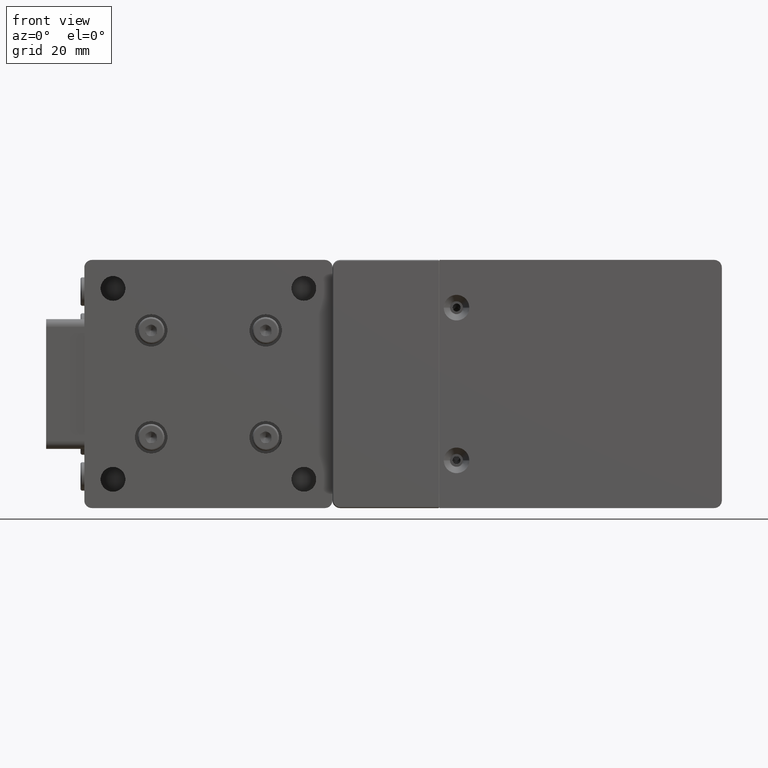
[diagram: clean part render]
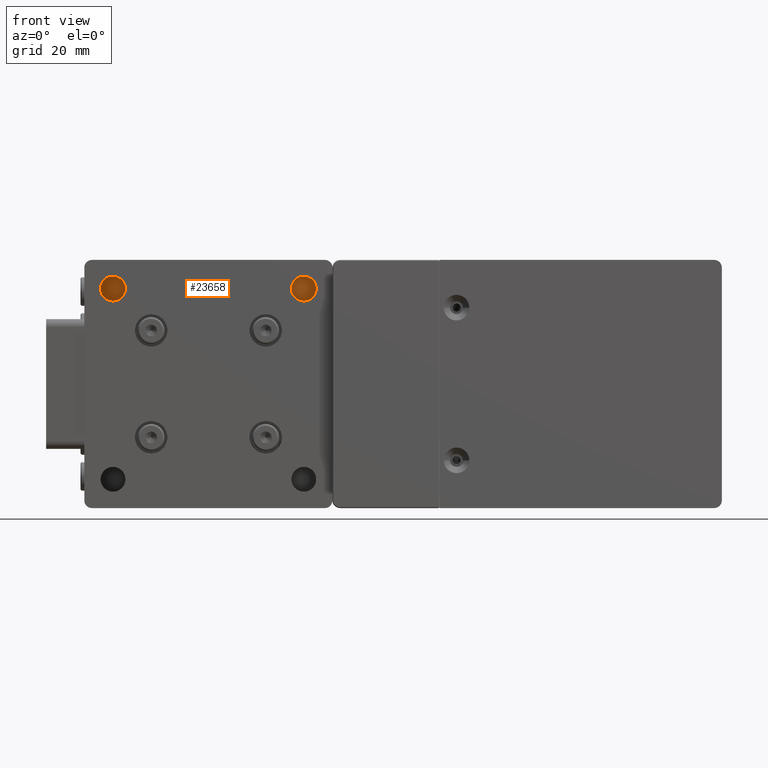
[diagram: same view with one face highlighted and labeled with its STEP entity id]
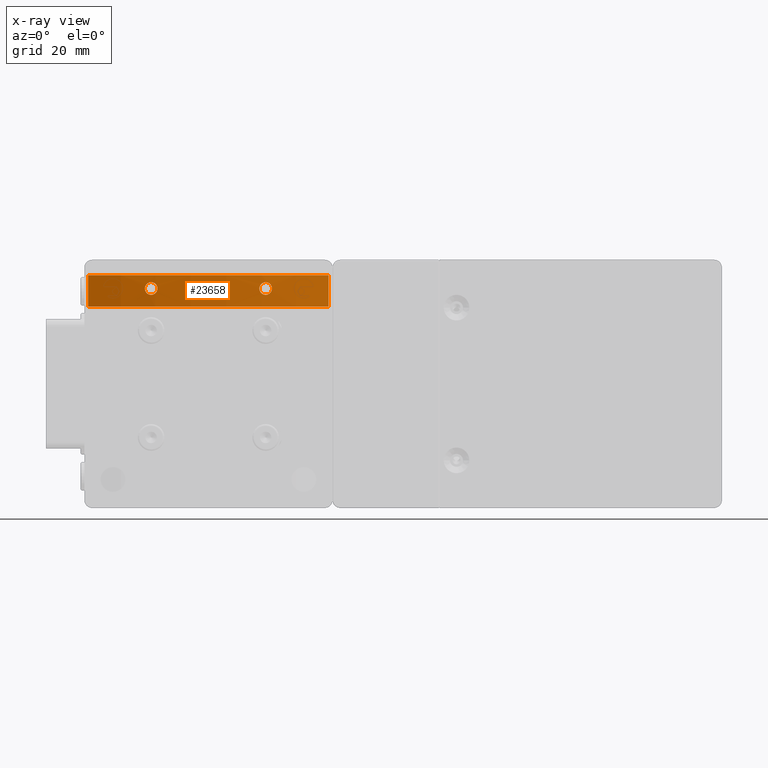
[diagram: x-ray of the same camera — body ghosted, the highlighted face saturated]
A machine part, front view. The second image highlights one B-rep face of the part: STEP entity #23658.
The next image is the same camera in x-ray: the body ghosted, the highlighted face saturated — about 0% of this face is hidden behind the body in this view.
In plain terms, the highlighted cylindrical surface (partial cylindrical patch) has radius 69 mm, axis along (0, 0, -1).
Its self-contained STEP definition (entity closure, byte-faithful):
#208 = CARTESIAN_POINT ( 'NONE',  ( -136.2671444760390216, 17.25779805089670305, 26.53107892347796692 ) ) ;
#495 = CARTESIAN_POINT ( 'NONE',  ( -136.3230241423154609, 17.24591134349849142, 23.49246358836145632 ) ) ;
#762 = CARTESIAN_POINT ( 'NONE',  ( -136.7476540198292128, 17.15716216431018637, 26.23422552766652416 ) ) ;
#937 = B_SPLINE_CURVE_WITH_KNOTS ( 'NONE', 3,
 ( #28343, #14983, #11346, #32518, #19421, #36961, #36673, #19974, #54193, #45582, #49477, #40590, #50016, #28071, #20246, #28615, #10792, #45302, #33059, #41131, #36133, #7453, #7179, #24169, #53370, #11622, #3002, #6358, #53927, #53102, #11070, #15804, #40853, #32780, #49751, #31958, #24438, #41422, #27513, #37229, #44480, #19158, #40305, #2176, #27787, #23625, #44751, #32226, #49190, #6631, #2456, #45031, #2734, #36399, #6907, #23887, #38046 ),
 .UNSPECIFIED., .F., .F.,
 ( 4, 2, 2, 2, 1, 1, 1, 2, 2, 2, 2, 1, 1, 2, 2, 2, 2, 2, 2, 2, 1, 1, 2, 2, 2, 2, 1, 1, 1, 1, 2, 2, 2, 4 ),
 ( 0.000000000000000000, 0.06249999999933407435, 0.09374999999899387426, 0.1093749999988235799, 0.1171874999987370519, 0.1210937499986931148, 0.1230468749986719512, 0.1240234374986598220, 0.1249999999986476928, 0.1874999999985022259, 0.2187499999984230670, 0.2343749999983770205, 0.2421874999983542054, 0.2460937499983498200, 0.2499999999983454346, 0.3749999999981881715, 0.4999999999980310195, 0.6249999999978738119, 0.6874999999977950971, 0.7187499999977607912, 0.7343749999977429166, 0.7421874999977290388, 0.7460937499977279286, 0.7499999999977268184, 0.8124999999977000620, 0.8437499999976932896, 0.8593749999976897369, 0.8671874999976882936, 0.8710937499976938447, 0.8730468749977028375, 0.8740234374977133847, 0.8749999999977239318, 0.9374999999988619104, 1.000000000000000000 ),
 .UNSPECIFIED. ) ;
#1036 = CARTESIAN_POINT ( 'NONE',  ( -135.9073143330418816, 17.33499617951038729, 23.35000000000000142 ) ) ;
#2176 = CARTESIAN_POINT ( 'NONE',  ( -166.4879652450436822, 17.58338118827665042, 23.57625209971656943 ) ) ;
#2456 = CARTESIAN_POINT ( 'NONE',  ( -166.2805825868216800, 17.53491289971255540, 23.47439690533544265 ) ) ;
#2563 = CARTESIAN_POINT ( 'NONE',  ( -164.3421149443990430, 17.11348866702505589, 26.00482148240324776 ) ) ;
#2734 = CARTESIAN_POINT ( 'NONE',  ( -166.2560988766641685, 17.52922092859046188, 23.46437258649104507 ) ) ;
#3002 = CARTESIAN_POINT ( 'NONE',  ( -167.2642609248367478, 17.77059325249816268, 25.41307193802908770 ) ) ;
#3022 = CARTESIAN_POINT ( 'NONE',  ( -135.0282118916066452, 17.53382673218439436, 23.47248179435045756 ) ) ;
#3121 = CARTESIAN_POINT ( 'NONE',  ( -164.4517016190830248, 17.13569483385906267, 26.13218119142318585 ) ) ;
#3361 = ORIENTED_EDGE ( 'NONE', *, *, #14215, .F. ) ;
#3392 = CARTESIAN_POINT ( 'NONE',  ( -165.6520614493394987, 17.39184551509384846, 26.64999999999999858 ) ) ;
#3671 = CARTESIAN_POINT ( 'NONE',  ( -164.2168744469715875, 17.08837574997539832, 25.82159775378046263 ) ) ;
#4133 = CARTESIAN_POINT ( 'NONE',  ( -134.4212197534290283, 17.67777941614300374, 26.09954506744314529 ) ) ;
#4393 = CARTESIAN_POINT ( 'NONE',  ( -134.5539894529269134, 17.64581223508557883, 23.76803023074601029 ) ) ;
#4666 = CARTESIAN_POINT ( 'NONE',  ( -136.6581535841622213, 17.17565264822895088, 26.30880685101286431 ) ) ;
#4940 = CARTESIAN_POINT ( 'NONE',  ( -136.1024890502454241, 17.29317437974479787, 26.58806184027736563 ) ) ;
#5209 = CARTESIAN_POINT ( 'NONE',  ( -136.6607204706821221, 17.17507861072263253, 23.68976944116282013 ) ) ;
#5481 = CARTESIAN_POINT ( 'NONE',  ( -136.0533748768193618, 17.30380578308597705, 26.60134371806330122 ) ) ;
#5761 = CARTESIAN_POINT ( 'NONE',  ( -137.2618042072623439, 17.05361926617134216, 24.57738059257509278 ) ) ;
#5810 = ORIENTED_EDGE ( 'NONE', *, *, #38083, .T. ) ;
#6358 = CARTESIAN_POINT ( 'NONE',  ( -167.3019066863101045, 17.78062275330859165, 25.20324927955860161 ) ) ;
#6631 = CARTESIAN_POINT ( 'NONE',  ( -166.2841006002981317, 17.53573093284395057, 23.47585101306745514 ) ) ;
#6650 = CARTESIAN_POINT ( 'NONE',  ( -135.1189626434997422, 17.51249719911340463, 23.43815787893170821 ) ) ;
#6745 = CARTESIAN_POINT ( 'NONE',  ( -164.8232266047364192, 17.21260357458587009, 26.42780440928181918 ) ) ;
#6907 = CARTESIAN_POINT ( 'NONE',  ( -165.9904623481330361, 17.46751512987306398, 23.38154454503272106 ) ) ;
#7009 = CARTESIAN_POINT ( 'NONE',  ( -164.4711839725119091, 17.13966879092089357, 26.15248703117523377 ) ) ;
#7179 = CARTESIAN_POINT ( 'NONE',  ( -166.8030455636016711, 17.65855245176747346, 26.18227321476728520 ) ) ;
#7195 = CARTESIAN_POINT ( 'NONE',  ( -135.6520614493391861, 17.39184551509384846, 23.34999999999999787 ) ) ;
#7198 = EDGE_LOOP ( 'NONE', ( #18204, #52701 ) ) ;
#7292 = CARTESIAN_POINT ( 'NONE',  ( -164.8233544309914009, 17.21259444788138637, 23.56916528775573738 ) ) ;
#7453 = CARTESIAN_POINT ( 'NONE',  ( -166.7946132457432213, 17.65652123940702367, 26.19042420093629531 ) ) ;
#7472 = CARTESIAN_POINT ( 'NONE',  ( -135.0455148064788773, 17.52976837978576796, 23.46551934169836784 ) ) ;
#7575 = CARTESIAN_POINT ( 'NONE',  ( -164.9342996013083109, 17.23599378208215072, 26.48617625572539680 ) ) ;
#7842 = CARTESIAN_POINT ( 'NONE',  ( -164.5295584518267447, 17.15162988606447669, 23.79060079269475025 ) ) ;
#7891 = VERTEX_POINT ( 'NONE', #19467 ) ;
#8026 = CARTESIAN_POINT ( 'NONE',  ( -134.4813358581939440, 17.66330791217172802, 26.16273587205414586 ) ) ;
#8294 = CARTESIAN_POINT ( 'NONE',  ( -134.4711099147278617, 17.66577041684524474, 26.15234829406006156 ) ) ;
#8574 = CARTESIAN_POINT ( 'NONE',  ( -134.4989868200676710, 17.65905617256691329, 23.81975761088409982 ) ) ;
#8821 = CARTESIAN_POINT ( 'NONE',  ( -136.3683059692373547, 17.23631486311974470, 23.51309030908805298 ) ) ;
#8828 = CARTESIAN_POINT ( 'NONE',  ( -134.3046921469731956, 17.70583637289161771, 25.95408733201701779 ) ) ;
#9026 = CARTESIAN_POINT ( 'NONE',  ( -165.6520614493394987, 17.39184551509384846, 26.64999999999999858 ) ) ;
#9097 = CARTESIAN_POINT ( 'NONE',  ( -136.4817623568887655, 17.21238592360695918, 26.43026579779363061 ) ) ;
#9377 = CARTESIAN_POINT ( 'NONE',  ( -136.3834671970221279, 17.23301897884172362, 26.48349052656696756 ) ) ;
#9602 = B_SPLINE_CURVE_WITH_KNOTS ( 'NONE', 3,
 ( #50124, #11186, #23728, #15911, #41792, #15093, #37066, #15363, #24556, #53209, #24280, #33168, #7292, #28179, #45691, #45411, #28725, #7842, #54302, #44864, #15644, #20090, #12017, #27892, #41245, #54027, #19808, #3671, #40689, #2563, #16187, #32892, #3121, #7009, #20351, #49853, #49034, #11733, #6745, #36788, #7575, #10903, #53763, #32623, #49577, #41532, #11450, #3392 ),
 .UNSPECIFIED., .F., .F.,
 ( 4, 2, 2, 1, 1, 2, 2, 2, 2, 1, 2, 2, 2, 2, 2, 2, 2, 1, 2, 2, 2, 2, 1, 1, 2, 2, 4 ),
 ( 0.000000000000000000, 0.06250000000002825518, 0.09375000000004238276, 0.1093750000000414252, 0.1171875000000495437, 0.1210937500000540401, 0.1250000000000585088, 0.1875000000000957567, 0.2187500000001145473, 0.2343750000001239564, 0.2421875000001286471, 0.2500000000001333378, 0.3750000000002343126, 0.5000000000003352874, 0.6250000000004362066, 0.6875000000004876100, 0.7187500000005098144, 0.7343750000005216938, 0.7421875000005224710, 0.7500000000005232481, 0.8125000000004949374, 0.8437500000004872769, 0.8593750000004833911, 0.8671875000004886092, 0.8710937500004842793, 0.8750000000004799494, 1.000000000000000000 ),
 .UNSPECIFIED. ) ;
#9646 = CARTESIAN_POINT ( 'NONE',  ( -136.2570001940165412, 17.25996307609115732, 26.53511527737849818 ) ) ;
#10792 = CARTESIAN_POINT ( 'NONE',  ( -166.6239962039541922, 17.61559533663841037, 26.33443767307752026 ) ) ;
#10903 = CARTESIAN_POINT ( 'NONE',  ( -164.9794833863145698, 17.24556841587363820, 26.50681601582882507 ) ) ;
#11065 = CARTESIAN_POINT ( 'NONE',  ( -119.1520614493393850, 23.35153268798140047, 28.50000000000000000 ) ) ;
#11070 = CARTESIAN_POINT ( 'NONE',  ( -167.1433154431358048, 17.74072283457915944, 24.28548958750046438 ) ) ;
#11090 = CARTESIAN_POINT ( 'NONE',  ( -135.1595579231535567, 17.50300666722466403, 23.42431318327391665 ) ) ;
#11186 = CARTESIAN_POINT ( 'NONE',  ( -165.5246043338255220, 17.36345855927478965, 23.35000000000000853 ) ) ;
#11339 = LINE ( 'NONE', #53361, #35325 ) ;
#11346 = CARTESIAN_POINT ( 'NONE',  ( -165.9904929759353820, 17.46752167085331564, 26.61845258880001808 ) ) ;
#11450 = CARTESIAN_POINT ( 'NONE',  ( -165.3960333312031992, 17.33482352107915503, 26.65000000000000213 ) ) ;
#11622 = CARTESIAN_POINT ( 'NONE',  ( -167.1021288693850124, 17.73055658147615077, 25.81677417448347356 ) ) ;
#11733 = CARTESIAN_POINT ( 'NONE',  ( -164.7763658142482655, 17.20279677848649413, 26.39948122451201229 ) ) ;
#11919 = CARTESIAN_POINT ( 'NONE',  ( -134.9293083268319720, 17.55686349103625687, 26.48380004553909828 ) ) ;
#12004 = ORIENTED_EDGE ( 'NONE', *, *, #40836, .F. ) ;
#12017 = CARTESIAN_POINT ( 'NONE',  ( -164.0431302957485684, 17.05378121623911625, 24.57441267906834526 ) ) ;
#12191 = CARTESIAN_POINT ( 'NONE',  ( -134.0401639804246940, 17.77051733157828295, 24.58573140635856191 ) ) ;
#12468 = CARTESIAN_POINT ( 'NONE',  ( -134.5577130720766945, 17.64490913301945341, 26.23835717445016869 ) ) ;
#12475 = FACE_OUTER_BOUND ( 'NONE', #25489, .T. ) ;
#12494 = CIRCLE ( 'NONE', #40938, 69.00000000000000000 ) ;
#12739 = CARTESIAN_POINT ( 'NONE',  ( -134.7675492650946865, 17.59485156339887268, 26.39392208088401404 ) ) ;
#13016 = CARTESIAN_POINT ( 'NONE',  ( -137.2613206622957591, 17.05371611586742731, 25.42432057609324758 ) ) ;
#13022 = CARTESIAN_POINT ( 'NONE',  ( -134.1603686656996786, 17.74083062617772555, 25.71359751916283543 ) ) ;
#13560 = CARTESIAN_POINT ( 'NONE',  ( -137.1383050378139501, 17.07822009626421433, 24.27513813504076623 ) ) ;
#13844 = CARTESIAN_POINT ( 'NONE',  ( -135.6520614493391861, 17.39184551509384846, 23.34999999999999787 ) ) ;
#14104 = CARTESIAN_POINT ( 'NONE',  ( -136.7940241146905862, 17.14763465308562829, 26.19104197735519790 ) ) ;
#14215 = EDGE_CURVE ( 'NONE', #30669, #49264, #12494, .T. ) ;
#14740 = CARTESIAN_POINT ( 'NONE',  ( -134.5818450831401663, 17.63911908923896021, 23.74390987109826057 ) ) ;
#14983 = CARTESIAN_POINT ( 'NONE',  ( -165.8430848405787401, 17.43438980574126518, 26.64999999999999503 ) ) ;
#15093 = CARTESIAN_POINT ( 'NONE',  ( -165.1334030844993777, 17.27846375184606131, 23.43345182164221541 ) ) ;
#15268 = CARTESIAN_POINT ( 'NONE',  ( -135.3138497241006064, 17.46747284594115257, 23.38151073536161562 ) ) ;
#15363 = CARTESIAN_POINT ( 'NONE',  ( -165.0633202063237093, 17.26342310378942813, 23.45854059806523395 ) ) ;
#15632 = CYLINDRICAL_SURFACE ( 'NONE', #22423, 69.00000000000000000 ) ;
#15644 = CARTESIAN_POINT ( 'NONE',  ( -164.3328337001516104, 17.11133388277898959, 23.98368000503707620 ) ) ;
#15804 = CARTESIAN_POINT ( 'NONE',  ( -167.0920270319045926, 17.72821711070685424, 24.18652492886407757 ) ) ;
#15911 = CARTESIAN_POINT ( 'NONE',  ( -165.2513448106647900, 17.30393451740328814, 23.39850947612250209 ) ) ;
#16187 = CARTESIAN_POINT ( 'NONE',  ( -164.3953833516332850, 17.12425460253738052, 26.06959883744880102 ) ) ;
#16371 = CARTESIAN_POINT ( 'NONE',  ( -134.6344737940562766, 17.62642965267119166, 26.30327957492936264 ) ) ;
#17186 = CARTESIAN_POINT ( 'NONE',  ( -137.0867568390792997, 17.08847417107986644, 24.17754772390309981 ) ) ;
#17190 = CARTESIAN_POINT ( 'NONE',  ( -135.0466233361927380, 17.52954600778969763, 26.53508176202193525 ) ) ;
#17196 = DIRECTION ( 'NONE',  ( -1.000000000000000000, 0.000000000000000000, 0.000000000000000000 ) ) ;
#17468 = CARTESIAN_POINT ( 'NONE',  ( -136.3033303689522029, 17.25009532245324451, 23.48395246035000383 ) ) ;
#17731 = CARTESIAN_POINT ( 'NONE',  ( -135.8967298641852608, 17.33785050499680835, 26.63525351202904545 ) ) ;
#17813 = ORIENTED_EDGE ( 'NONE', *, *, #49746, .T. ) ;
#17996 = CARTESIAN_POINT ( 'NONE',  ( -136.5265753721322710, 17.20304418146054104, 23.59977691652263232 ) ) ;
#18204 = ORIENTED_EDGE ( 'NONE', *, *, #21517, .F. ) ;
#18230 = DIRECTION ( 'NONE',  ( 0.000000000000000000, 3.469776016379125125E-18, -1.000000000000000000 ) ) ;
#18284 = CARTESIAN_POINT ( 'NONE',  ( -136.1714718323754880, 17.27830253067669375, 26.56629952820168583 ) ) ;
#18888 = CARTESIAN_POINT ( 'NONE',  ( -135.4611389697565187, 17.43436733092904944, 23.35000000000000853 ) ) ;
#19158 = CARTESIAN_POINT ( 'NONE',  ( -166.6687530018866994, 17.62621485835268587, 23.69600773618001099 ) ) ;
#19412 = DIRECTION ( 'NONE',  ( -3.093959498631255565E-21, -3.469776016379125125E-18, 1.000000000000000000 ) ) ;
#19421 = CARTESIAN_POINT ( 'NONE',  ( -166.1856411474868764, 17.51260744362284427, 26.56167955768055933 ) ) ;
#19467 = CARTESIAN_POINT ( 'NONE',  ( -182.1520614493395271, 23.35153268798140047, 28.50000000000000000 ) ) ;
#19808 = CARTESIAN_POINT ( 'NONE',  ( -164.1653717070502978, 17.07813116279691457, 25.72395082146795176 ) ) ;
#19974 = CARTESIAN_POINT ( 'NONE',  ( -166.2592895434327716, 17.52992648154578958, 26.53421119626837665 ) ) ;
#19995 = CARTESIAN_POINT ( 'NONE',  ( -135.0293093311689461, 17.53357167321541255, 23.47203291459442553 ) ) ;
#20090 = CARTESIAN_POINT ( 'NONE',  ( -164.2083226037595978, 17.08668580260589565, 24.17210980770596152 ) ) ;
#20246 = CARTESIAN_POINT ( 'NONE',  ( -166.3900513595832535, 17.56036396095055352, 26.48077737051265856 ) ) ;
#20351 = CARTESIAN_POINT ( 'NONE',  ( -164.4821912287275438, 17.14191828944147034, 26.16364098634010560 ) ) ;
#20462 = ORIENTED_EDGE ( 'NONE', *, *, #55089, .T. ) ;
#21094 = CARTESIAN_POINT ( 'NONE',  ( -135.0249674071757795, 17.53458114069502827, 26.52618910754897286 ) ) ;
#21517 = EDGE_CURVE ( 'NONE', #49531, #22495, #44841, .T. ) ;
#21925 = CARTESIAN_POINT ( 'NONE',  ( -137.3019208447608435, 17.04549356834623097, 25.21086843285453227 ) ) ;
#22294 = AXIS2_PLACEMENT_3D ( 'NONE', #30778, #18230, #27146 ) ;
#22423 = AXIS2_PLACEMENT_3D ( 'NONE', #32609, #51166, #17196 ) ;
#22435 = EDGE_CURVE ( 'NONE', #22495, #49531, #50053, .T. ) ;
#22467 = CARTESIAN_POINT ( 'NONE',  ( -136.9081489196039740, 17.12437461976553976, 23.92970778676870935 ) ) ;
#22495 = VERTEX_POINT ( 'NONE', #13844 ) ;
#22747 = CARTESIAN_POINT ( 'NONE',  ( -135.6520614493391861, 17.39184551509384846, 26.64999999999999858 ) ) ;
#23625 = CARTESIAN_POINT ( 'NONE',  ( -166.3732781754469272, 17.55650372736316100, 23.51545063575386152 ) ) ;
#23642 = CARTESIAN_POINT ( 'NONE',  ( -135.0733849378058551, 17.52320188413784408, 23.45471854279479729 ) ) ;
#23658 = ADVANCED_FACE ( 'NONE', ( #33905, #36777, #12475 ), #15632, .T. ) ;
#23728 = CARTESIAN_POINT ( 'NONE',  ( -165.4077688046025685, 17.33793244037477521, 23.36470064084633691 ) ) ;
#23887 = CARTESIAN_POINT ( 'NONE',  ( -165.8430825170565299, 17.43438928825176149, 23.35000000000000497 ) ) ;
#24169 = CARTESIAN_POINT ( 'NONE',  ( -166.8061639866832309, 17.65930369521634447, 26.17923725139302604 ) ) ;
#24280 = CARTESIAN_POINT ( 'NONE',  ( -165.0344971295058087, 17.25726853303653030, 23.46991314600371581 ) ) ;
#24438 = CARTESIAN_POINT ( 'NONE',  ( -166.8475912184833874, 17.66927998364960928, 23.86264386112233282 ) ) ;
#24460 = CARTESIAN_POINT ( 'NONE',  ( -134.8142072292309592, 17.58378421478999343, 23.57451643249924444 ) ) ;
#24556 = CARTESIAN_POINT ( 'NONE',  ( -165.0479783726297285, 17.26014560096469452, 23.46454783403881450 ) ) ;
#25276 = CARTESIAN_POINT ( 'NONE',  ( -135.0130173324497491, 17.53736020481881042, 26.52123232832640198 ) ) ;
#25489 = EDGE_LOOP ( 'NONE', ( #17813, #3361, #5810, #20462 ) ) ;
#25551 = CARTESIAN_POINT ( 'NONE',  ( -134.5020975097217502, 17.65830684306609655, 23.81673449615532334 ) ) ;
#25812 = CARTESIAN_POINT ( 'NONE',  ( -136.6157290067135648, 17.18445823081582802, 26.34042373932495451 ) ) ;
#26372 = CARTESIAN_POINT ( 'NONE',  ( -137.3022013164644193, 17.04543390524821689, 24.79133773805623520 ) ) ;
#26521 = VECTOR ( 'NONE', #19412, 1000.000000000000000 ) ;
#27146 = DIRECTION ( 'NONE',  ( -1.000000000000000000, 0.000000000000000000, 0.000000000000000000 ) ) ;
#27513 = CARTESIAN_POINT ( 'NONE',  ( -166.8221341047261035, 17.66315051278440507, 23.83660707966777892 ) ) ;
#27615 = CIRCLE ( 'NONE', #22294, 69.00000000000000000 ) ;
#27787 = CARTESIAN_POINT ( 'NONE',  ( -166.4122634991880432, 17.56562424456597782, 23.53527608293760665 ) ) ;
#27892 = CARTESIAN_POINT ( 'NONE',  ( -164.0023604825255745, 17.04552478400755433, 24.78782672227976391 ) ) ;
#28062 = DIRECTION ( 'NONE',  ( 3.093959498631255565E-21, 3.469776016379125125E-18, -1.000000000000000000 ) ) ;
#28071 = CARTESIAN_POINT ( 'NONE',  ( -166.2755925253407554, 17.53375274929774008, 26.52764937667130596 ) ) ;
#28179 = CARTESIAN_POINT ( 'NONE',  ( -164.6894395739527965, 17.18467542956485872, 23.65882702493957979 ) ) ;
#28343 = CARTESIAN_POINT ( 'NONE',  ( -165.6520614493394987, 17.39184551509384846, 26.64999999999999858 ) ) ;
#28606 = LINE ( 'NONE', #11065, #26521 ) ;
#28615 = CARTESIAN_POINT ( 'NONE',  ( -166.4908210489302576, 17.58399748302125687, 26.42495846126143633 ) ) ;
#28725 = CARTESIAN_POINT ( 'NONE',  ( -164.5575470870261654, 17.15738398082447702, 23.76481906886778361 ) ) ;
#28911 = CARTESIAN_POINT ( 'NONE',  ( -134.4558905003110851, 17.66943480055844162, 26.13668182079156921 ) ) ;
#29179 = CARTESIAN_POINT ( 'NONE',  ( -134.9766536890941211, 17.54582427199723682, 26.50556266503039993 ) ) ;
#29451 = CARTESIAN_POINT ( 'NONE',  ( -134.3275675425314546, 17.70034854449922790, 23.98871845063130692 ) ) ;
#29587 = ORIENTED_EDGE ( 'NONE', *, *, #41862, .F. ) ;
#29729 = CARTESIAN_POINT ( 'NONE',  ( -135.0008150001924605, 17.54019914653534329, 26.51607324635325114 ) ) ;
#30000 = CARTESIAN_POINT ( 'NONE',  ( -136.8518091416468963, 17.13581977556180647, 23.86717019811574048 ) ) ;
#30007 = CARTESIAN_POINT ( 'NONE',  ( -135.4608101431084322, 17.43444056644433360, 26.64999999999999503 ) ) ;
#30269 = CARTESIAN_POINT ( 'NONE',  ( -136.4059470711200106, 17.22837411510767325, 23.53203128920379328 ) ) ;
#30538 = CARTESIAN_POINT ( 'NONE',  ( -136.9946165630795747, 17.10693598048039732, 24.03921104371507056 ) ) ;
#30669 = VERTEX_POINT ( 'NONE', #41408 ) ;
#30778 = CARTESIAN_POINT ( 'NONE',  ( -150.6520614493395271, 84.74167847702480572, 28.50000000000000000 ) ) ;
#31958 = CARTESIAN_POINT ( 'NONE',  ( -166.8822788095642409, 17.67762833499617869, 23.89975660626294740 ) ) ;
#32226 = CARTESIAN_POINT ( 'NONE',  ( -166.3016007647259471, 17.53980155838171484, 23.48319444534392986 ) ) ;
#32518 = CARTESIAN_POINT ( 'NONE',  ( -166.1449784097353870, 17.50310083021834373, 26.57555991325335754 ) ) ;
#32609 = CARTESIAN_POINT ( 'NONE',  ( -150.6520614493395271, 84.74167847702480572, 28.50000000000000000 ) ) ;
#32623 = CARTESIAN_POINT ( 'NONE',  ( -165.0122980030958786, 17.25254150891896288, 26.52093849502119483 ) ) ;
#32780 = CARTESIAN_POINT ( 'NONE',  ( -166.9651284887324323, 17.69756890119421655, 23.99917363744734544 ) ) ;
#32799 = CARTESIAN_POINT ( 'NONE',  ( -135.0299681927785969, 17.53341742360910516, 23.47176538218331743 ) ) ;
#32892 = CARTESIAN_POINT ( 'NONE',  ( -164.4228996713919173, 17.12983022623907203, 26.10138199875695619 ) ) ;
#33059 = CARTESIAN_POINT ( 'NONE',  ( -166.7232782102485942, 17.63935859499344616, 26.25523756844775392 ) ) ;
#33168 = CARTESIAN_POINT ( 'NONE',  ( -164.9215990108085634, 17.23321846594944873, 23.51605225115702069 ) ) ;
#33622 = CARTESIAN_POINT ( 'NONE',  ( -134.5232999339640969, 17.65320011067890960, 23.79640471054534601 ) ) ;
#33898 = CARTESIAN_POINT ( 'NONE',  ( -134.0390573889566213, 17.77079242763579714, 25.41011342535848527 ) ) ;
#33905 = FACE_BOUND ( 'NONE', #34730, .T. ) ;
#34172 = CARTESIAN_POINT ( 'NONE',  ( -136.8806213724745930, 17.12995278998350912, 23.89794696895332748 ) ) ;
#34445 = CARTESIAN_POINT ( 'NONE',  ( -136.2818239666400757, 17.25467012821204804, 23.47490064615555738 ) ) ;
#34471 = CARTESIAN_POINT ( 'NONE',  ( -119.1520614493393850, 23.35153268798140047, 28.50000000000000000 ) ) ;
#34719 = CARTESIAN_POINT ( 'NONE',  ( -136.2047938784068890, 17.27113542012855518, 26.55495649430663718 ) ) ;
#34730 = EDGE_LOOP ( 'NONE', ( #29587, #12004 ) ) ;
#34983 = CARTESIAN_POINT ( 'NONE',  ( -136.2901380091777241, 17.25290046434519908, 23.47835298051177944 ) ) ;
#35103 = CARTESIAN_POINT ( 'NONE',  ( -182.1520614493395271, 23.35153268798140047, 20.19999999999999929 ) ) ;
#35265 = CARTESIAN_POINT ( 'NONE',  ( -136.7411297572909064, 17.15846018826289310, 23.75642329132887554 ) ) ;
#35325 = VECTOR ( 'NONE', #28062, 1000.000000000000000 ) ;
#35723 = VERTEX_POINT ( 'NONE', #34471 ) ;
#35876 = CARTESIAN_POINT ( 'NONE',  ( -134.6810919473612955, 17.61536587887423622, 23.66486180487909508 ) ) ;
#36133 = CARTESIAN_POINT ( 'NONE',  ( -166.7818388015560629, 17.65344432376096151, 26.20264201366332557 ) ) ;
#36399 = CARTESIAN_POINT ( 'NONE',  ( -166.1963425658261997, 17.51493095004241241, 23.43869564329898125 ) ) ;
#36673 = CARTESIAN_POINT ( 'NONE',  ( -166.2440030561408832, 17.52632618106819606, 26.54020289123965171 ) ) ;
#36777 = FACE_BOUND ( 'NONE', #7198, .T. ) ;
#36788 = CARTESIAN_POINT ( 'NONE',  ( -164.8967392283822448, 17.22807086374789165, 26.46722919144433916 ) ) ;
#36961 = CARTESIAN_POINT ( 'NONE',  ( -166.2313259022535021, 17.52333770415382830, 26.54506157721248982 ) ) ;
#37066 = CARTESIAN_POINT ( 'NONE',  ( -165.1001227369249023, 17.27130528840899615, 23.44476240796820932 ) ) ;
#37229 = CARTESIAN_POINT ( 'NONE',  ( -166.8159175466487909, 17.66165327766474746, 23.83039632831818011 ) ) ;
#37245 = CARTESIAN_POINT ( 'NONE',  ( -134.4875540724329994, 17.66181021552496588, 26.16895520350958293 ) ) ;
#37529 = CARTESIAN_POINT ( 'NONE',  ( -134.8148832938671262, 17.58368238884979107, 26.42299488609183555 ) ) ;
#37807 = CARTESIAN_POINT ( 'NONE',  ( -135.0182729191665487, 17.53613786287194642, 26.52342236679602649 ) ) ;
#38046 = CARTESIAN_POINT ( 'NONE',  ( -165.6520614493394987, 17.39184551509384846, 23.34999999999999787 ) ) ;
#38064 = CARTESIAN_POINT ( 'NONE',  ( -135.3131602328806764, 17.46762627228775955, 26.61837179909601403 ) ) ;
#38083 = EDGE_CURVE ( 'NONE', #30669, #35723, #28606, .T. ) ;
#38381 = CARTESIAN_POINT ( 'NONE',  ( -135.6520614493391861, 17.39184551509384846, 26.64999999999999858 ) ) ;
#38432 = DIRECTION ( 'NONE',  ( -1.000000000000000000, 0.000000000000000000, 0.000000000000000000 ) ) ;
#38618 = CARTESIAN_POINT ( 'NONE',  ( -136.9614410570310383, 17.11360336647674885, 23.99444062253882137 ) ) ;
#38897 = CARTESIAN_POINT ( 'NONE',  ( -136.2705005384904950, 17.25708210548853572, 26.52973352244434579 ) ) ;
#39167 = CARTESIAN_POINT ( 'NONE',  ( -136.1177233809453924, 17.28962412118588432, 23.40776287117655130 ) ) ;
#40305 = CARTESIAN_POINT ( 'NONE',  ( -166.5354023196691742, 17.59457369649055991, 23.60533219328545229 ) ) ;
#40590 = CARTESIAN_POINT ( 'NONE',  ( -166.2759899021122294, 17.53384475099504414, 26.52748598265086954 ) ) ;
#40689 = CARTESIAN_POINT ( 'NONE',  ( -164.3089569602381346, 17.10682512587159110, 25.96002160473170761 ) ) ;
#40836 = EDGE_CURVE ( 'NONE', #52981, #43610, #9602, .T. ) ;
#40853 = CARTESIAN_POINT ( 'NONE',  ( -166.9988739188308102, 17.70570068371970862, 24.04512733068459340 ) ) ;
#40938 = AXIS2_PLACEMENT_3D ( 'NONE', #50115, #47055, #38432 ) ;
#41131 = CARTESIAN_POINT ( 'NONE',  ( -166.7511419906850563, 17.64605417418245992, 26.23107092574151267 ) ) ;
#41148 = CARTESIAN_POINT ( 'NONE',  ( -135.0326547456768083, 17.53278967774635788, 23.47067320259249357 ) ) ;
#41245 = CARTESIAN_POINT ( 'NONE',  ( -164.0017657300603275, 17.04540319767528800, 25.20749655084906493 ) ) ;
#41408 = CARTESIAN_POINT ( 'NONE',  ( -119.1520614493393850, 23.35153268798140047, 20.19999999999999929 ) ) ;
#41422 = CARTESIAN_POINT ( 'NONE',  ( -166.8323647311385400, 17.66561404438417426, 23.84698774120261788 ) ) ;
#41532 = CARTESIAN_POINT ( 'NONE',  ( -165.1850368617697313, 17.28932963906251530, 26.59188783213587826 ) ) ;
#41701 = CARTESIAN_POINT ( 'NONE',  ( -134.3384159491460252, 17.69770958762639879, 26.00006742260930537 ) ) ;
#41792 = CARTESIAN_POINT ( 'NONE',  ( -165.2022970699833024, 17.29331708564254555, 23.41175229224122489 ) ) ;
#41862 = EDGE_CURVE ( 'NONE', #43610, #52981, #937, .T. ) ;
#41979 = CARTESIAN_POINT ( 'NONE',  ( -134.8904132134618692, 17.56596390983866840, 26.46397144516064515 ) ) ;
#42261 = CARTESIAN_POINT ( 'NONE',  ( -135.1066954343446582, 17.51517899296044689, 26.56094754053917129 ) ) ;
#42788 = CARTESIAN_POINT ( 'NONE',  ( -137.0964925823795113, 17.08654682236367961, 25.82666914039736739 ) ) ;
#43070 = CARTESIAN_POINT ( 'NONE',  ( -136.9721762032460788, 17.11115495142049525, 26.01515180081725376 ) ) ;
#43610 = VERTEX_POINT ( 'NONE', #9026 ) ;
#43620 = CARTESIAN_POINT ( 'NONE',  ( -136.7756457776736170, 17.15140788394968396, 26.20839479393119120 ) ) ;
#43889 = CARTESIAN_POINT ( 'NONE',  ( -135.7797171293170209, 17.36341433545378976, 26.64999999999999503 ) ) ;
#44480 = CARTESIAN_POINT ( 'NONE',  ( -166.7456516059098419, 17.64472714922129626, 23.76096643802152286 ) ) ;
#44751 = CARTESIAN_POINT ( 'NONE',  ( -166.3258201930948417, 17.54543954460187649, 23.49369815597355782 ) ) ;
#44841 = B_SPLINE_CURVE_WITH_KNOTS ( 'NONE', 3,
 ( #22747, #43889, #17731, #5481, #4940, #18284, #34719, #51681, #9646, #208, #38897, #9377, #9097, #25812, #4666, #48057, #762, #43620, #14104, #51152, #43070, #42788, #13016, #21925, #26372, #5761, #13560, #17186, #30538, #38618, #22467, #34172, #30000, #47781, #47507, #35265, #5209, #17996, #46965, #30269, #8821, #495, #17468, #34983, #34445, #39167, #1036, #51418 ),
 .UNSPECIFIED., .F., .F.,
 ( 4, 2, 2, 1, 1, 2, 2, 2, 2, 1, 2, 2, 2, 2, 2, 2, 2, 1, 2, 2, 2, 2, 1, 1, 2, 2, 4 ),
 ( 0.000000000000000000, 0.06250000000000996425, 0.09375000000000735523, 0.1093749999999974881, 0.1171874999999925615, 0.1210937499999903272, 0.1249999999999880929, 0.1874999999999517331, 0.2187499999999331646, 0.2343749999999243661, 0.2421874999999198141, 0.2499999999999152622, 0.3749999999998500089, 0.4999999999997847278, 0.6249999999997194466, 0.6874999999996888045, 0.7187499999996778133, 0.7343749999996731503, 0.7421874999996759259, 0.7499999999996787015, 0.8124999999996413980, 0.8437499999996290745, 0.8593749999996229683, 0.8671874999996130873, 0.8710937499996147526, 0.8749999999996163069, 1.000000000000000000 ),
 .UNSPECIFIED. ) ;
#44864 = CARTESIAN_POINT ( 'NONE',  ( -164.5032527960738378, 17.14623049163942881, 23.81554358821856709 ) ) ;
#45031 = CARTESIAN_POINT ( 'NONE',  ( -166.2773833367768930, 17.53416910133644180, 23.47308393738263632 ) ) ;
#45050 = CARTESIAN_POINT ( 'NONE',  ( -135.0388331427056983, 17.53134107828917720, 23.46817785437269777 ) ) ;
#45302 = CARTESIAN_POINT ( 'NONE',  ( -166.6654178751519169, 17.62548588292932195, 26.30311763192944241 ) ) ;
#45411 = CARTESIAN_POINT ( 'NONE',  ( -164.5868087045776917, 17.16342092015811716, 23.73967879265203962 ) ) ;
#45582 = CARTESIAN_POINT ( 'NONE',  ( -166.2722130324440855, 17.53296277581288720, 26.52902491763444104 ) ) ;
#45691 = CARTESIAN_POINT ( 'NONE',  ( -164.6470282817190309, 17.17587192492360870, 23.69038167558753827 ) ) ;
#45876 = CARTESIAN_POINT ( 'NONE',  ( -135.6520614493391861, 17.39184551509384846, 26.64999999999999858 ) ) ;
#46425 = CARTESIAN_POINT ( 'NONE',  ( -134.5105281531218395, 17.65627617281296224, 23.80859912345320240 ) ) ;
#46965 = CARTESIAN_POINT ( 'NONE',  ( -136.4796164248942034, 17.21287236121456132, 23.57144988577496392 ) ) ;
#46971 = CARTESIAN_POINT ( 'NONE',  ( -134.2026324443806686, 17.73039873708878389, 24.18208345318391750 ) ) ;
#47055 = DIRECTION ( 'NONE',  ( 0.000000000000000000, 3.469776016379125125E-18, -1.000000000000000000 ) ) ;
#47507 = CARTESIAN_POINT ( 'NONE',  ( -136.8213225093688834, 17.14204291578193562, 23.83574674204863442 ) ) ;
#47781 = CARTESIAN_POINT ( 'NONE',  ( -136.8323201410065622, 17.13979528047186207, 23.84687931855404486 ) ) ;
#48057 = CARTESIAN_POINT ( 'NONE',  ( -136.7183870014372644, 17.16319974686390282, 26.25941415197525686 ) ) ;
#48674 = CARTESIAN_POINT ( 'NONE',  ( -134.6396864627726302, 17.62525188947594756, 23.69612162523010568 ) ) ;
#49034 = CARTESIAN_POINT ( 'NONE',  ( -164.6424946652150823, 17.17489058021439163, 26.30951788101990374 ) ) ;
#49190 = CARTESIAN_POINT ( 'NONE',  ( -166.2893689272146958, 17.53695609156176616, 23.47803927228508059 ) ) ;
#49208 = CARTESIAN_POINT ( 'NONE',  ( -135.0607444622849016, 17.52618159367787243, 23.45955749750641672 ) ) ;
#49264 = VERTEX_POINT ( 'NONE', #35103 ) ;
#49477 = CARTESIAN_POINT ( 'NONE',  ( -166.2749170937429710, 17.53359463555974784, 26.52792405849762503 ) ) ;
#49531 = VERTEX_POINT ( 'NONE', #38381 ) ;
#49577 = CARTESIAN_POINT ( 'NONE',  ( -165.0205720449500859, 17.25430243873082858, 26.52438517260047846 ) ) ;
#49746 = EDGE_CURVE ( 'NONE', #7891, #49264, #11339, .T. ) ;
#49751 = CARTESIAN_POINT ( 'NONE',  ( -166.9105540908475120, 17.68443176711130249, 23.93251656417984208 ) ) ;
#49853 = CARTESIAN_POINT ( 'NONE',  ( -164.5622403382701862, 17.15830536806763007, 26.24290681406200676 ) ) ;
#50016 = CARTESIAN_POINT ( 'NONE',  ( -166.2766859960709951, 17.53400689870767337, 26.52720146575189375 ) ) ;
#50034 = CARTESIAN_POINT ( 'NONE',  ( -135.0217824181166861, 17.53532171209853985, 26.52487768408946067 ) ) ;
#50053 = B_SPLINE_CURVE_WITH_KNOTS ( 'NONE', 3,
 ( #7195, #18888, #15268, #11090, #6650, #23642, #49208, #7472, #45050, #41148, #32799, #52851, #3022, #19995, #53941, #24460, #35876, #48674, #14740, #4393, #33622, #46425, #25551, #8574, #29451, #46971, #12191, #50590, #54488, #33898, #13022, #50870, #8828, #41701, #54212, #4133, #28911, #8294, #8026, #37245, #12468, #16371, #12739, #37529, #41979, #11919, #29179, #29729, #25276, #37807, #50034, #21094, #17190, #42261, #38064, #30007, #45876 ),
 .UNSPECIFIED., .F., .F.,
 ( 4, 2, 2, 2, 1, 1, 1, 2, 2, 2, 2, 1, 1, 2, 2, 2, 2, 2, 2, 2, 1, 1, 2, 2, 2, 2, 1, 1, 1, 1, 2, 2, 2, 4 ),
 ( 0.000000000000000000, 0.06249999999846866938, 0.09374999999770253223, 0.1093749999973068904, 0.1171874999971095899, 0.1210937499970359960, 0.1230468749969702291, 0.1240234374969662462, 0.1249999999969622633, 0.1874999999969985676, 0.2187499999970174414, 0.2343749999970270725, 0.2421874999970325959, 0.2460937499970361486, 0.2499999999970397013, 0.3749999999971653786, 0.4999999999972910558, 0.6249999999974167331, 0.6874999999974794607, 0.7187499999975114351, 0.7343749999975275333, 0.7421874999975404119, 0.7460937499975468512, 0.7499999999975532905, 0.8124999999974666931, 0.8437499999974232834, 0.8593749999974016340, 0.8671874999973844256, 0.8710937499973762099, 0.8730468749973723241, 0.8740234374973770981, 0.8749999999973817610, 0.9374999999986908250, 1.000000000000000000 ),
 .UNSPECIFIED. ) ;
#50115 = CARTESIAN_POINT ( 'NONE',  ( -150.6520614493395271, 84.74167847702480572, 20.19999999999999929 ) ) ;
#50124 = CARTESIAN_POINT ( 'NONE',  ( -165.6520614493394987, 17.39184551509384846, 23.34999999999999787 ) ) ;
#50590 = CARTESIAN_POINT ( 'NONE',  ( -134.0023657858427839, 17.78058560352999606, 24.79547161259872112 ) ) ;
#50870 = CARTESIAN_POINT ( 'NONE',  ( -134.2116072176252999, 17.72833683767394319, 25.81261202466599158 ) ) ;
#51152 = CARTESIAN_POINT ( 'NONE',  ( -136.8019661264631566, 17.14600591284007436, 26.18339233628743656 ) ) ;
#51166 = DIRECTION ( 'NONE',  ( 0.000000000000000000, 3.469776016379125125E-18, -1.000000000000000000 ) ) ;
#51418 = CARTESIAN_POINT ( 'NONE',  ( -135.6520614493391861, 17.39184551509384846, 23.34999999999999787 ) ) ;
#51681 = CARTESIAN_POINT ( 'NONE',  ( -136.2416404524664131, 17.26324421563107236, 26.54113936122818984 ) ) ;
#52701 = ORIENTED_EDGE ( 'NONE', *, *, #22435, .F. ) ;
#52851 = CARTESIAN_POINT ( 'NONE',  ( -135.0289029383188506, 17.53366576743615468, 23.47219974819453370 ) ) ;
#52981 = VERTEX_POINT ( 'NONE', #54063 ) ;
#53102 = CARTESIAN_POINT ( 'NONE',  ( -167.2647904406605903, 17.77072432383869227, 24.58883140332986628 ) ) ;
#53209 = CARTESIAN_POINT ( 'NONE',  ( -165.0378458162732613, 17.25798294936996058, 23.46857292905632875 ) ) ;
#53361 = CARTESIAN_POINT ( 'NONE',  ( -182.1520614493395271, 23.35153268798140047, 28.50000000000000000 ) ) ;
#53370 = CARTESIAN_POINT ( 'NONE',  ( -166.9773783388407935, 17.70054946482127889, 26.01018453818176823 ) ) ;
#53763 = CARTESIAN_POINT ( 'NONE',  ( -164.9991343524615388, 17.24974280801317050, 26.51533408162999095 ) ) ;
#53927 = CARTESIAN_POINT ( 'NONE',  ( -167.3022152497435684, 17.78070440686854781, 24.79927130098686661 ) ) ;
#53941 = CARTESIAN_POINT ( 'NONE',  ( -134.9149217004342916, 17.56016492902836745, 23.51880754734584755 ) ) ;
#54027 = CARTESIAN_POINT ( 'NONE',  ( -164.0420297945377968, 17.05356239151839404, 25.42154809626656586 ) ) ;
#54063 = CARTESIAN_POINT ( 'NONE',  ( -165.6520614493394987, 17.39184551509384846, 23.34999999999999787 ) ) ;
#54193 = CARTESIAN_POINT ( 'NONE',  ( -166.2660000775807987, 17.53150602806111991, 26.53153769600933032 ) ) ;
#54212 = CARTESIAN_POINT ( 'NONE',  ( -134.3929594982034246, 17.68457946422191540, 26.06676478856947909 ) ) ;
#54302 = CARTESIAN_POINT ( 'NONE',  ( -164.5111816918526699, 17.14785667724084206, 23.80792080757505857 ) ) ;
#54488 = CARTESIAN_POINT ( 'NONE',  ( -134.0017608106492162, 17.78074087653678603, 25.19958818940809309 ) ) ;
#55089 = EDGE_CURVE ( 'NONE', #35723, #7891, #27615, .T. ) ;